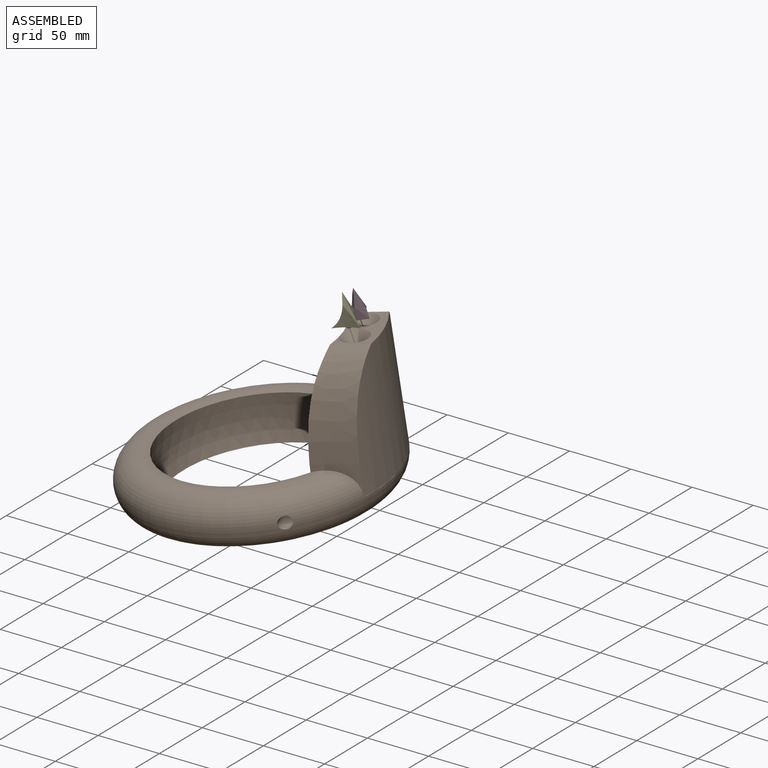
[diagram: assembled view]
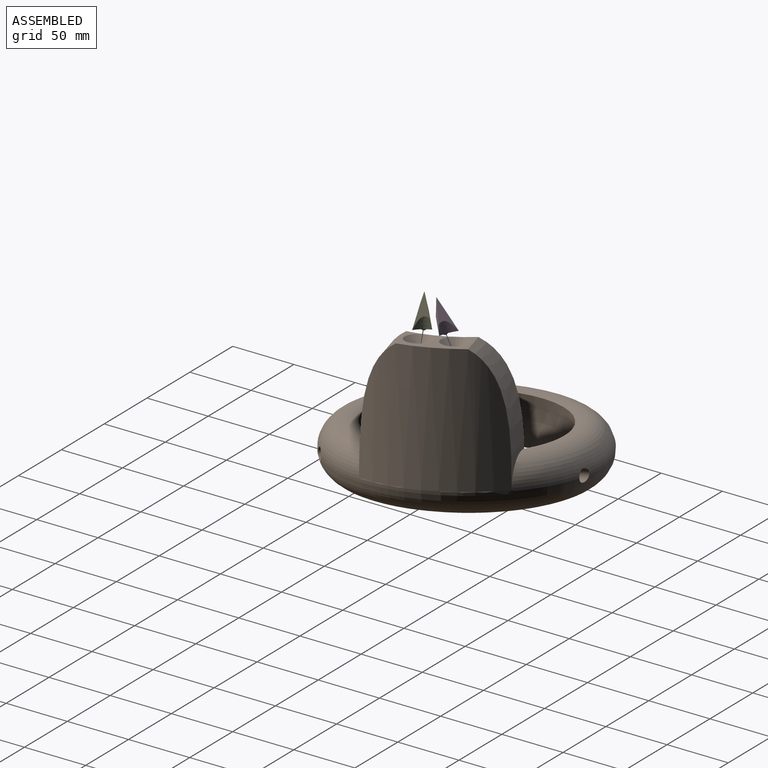
[diagram: assembled view, second angle]
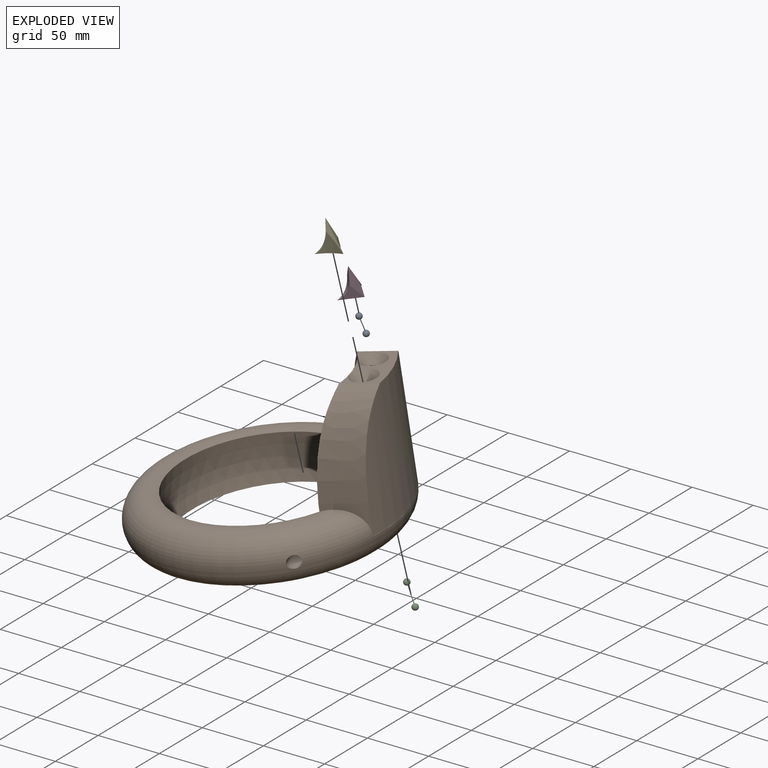
[diagram: exploded view]
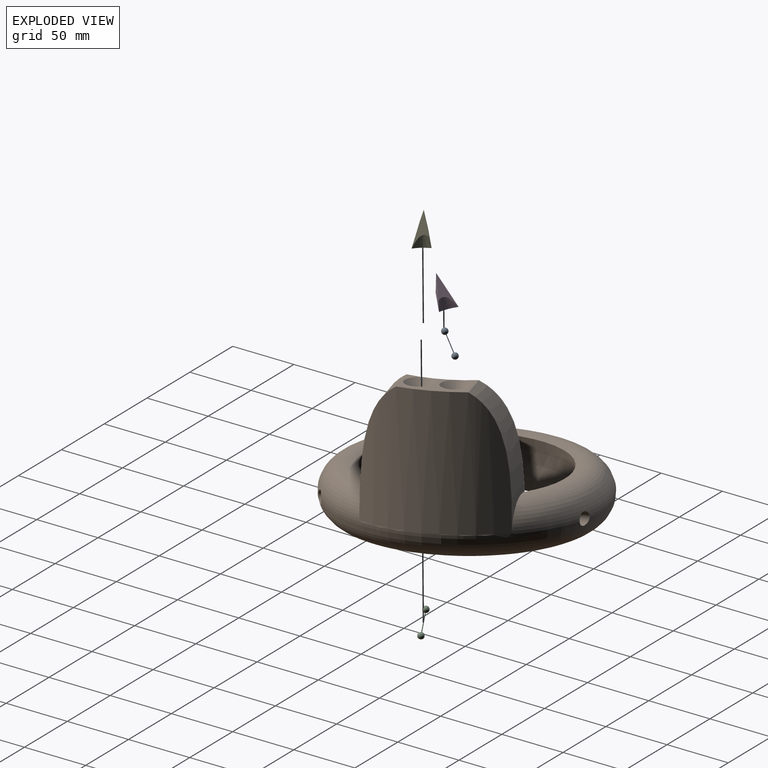
[diagram: exploded view, second angle]
ASSEMBLY  parts=5 mates=4
PART A: 3 faces, bbox 5x5x23.1 mm
  f0: sphere r=2.5mm, area 78.3mm2, adj f1
  f1: cylinder r=0.3mm len=13.14mm, axis (0,0,1), area 24.8mm2, adj f0,f2
  f2: sphere r=2.5mm, area 78.3mm2, adj f1
PART B: 16 faces, bbox 217.7x217.7x121.2 mm
  f0: torus R=80mm, axis (0,0,-1), area 39239.8mm2, adj f1,f3,f7,f9,f10,f11
  f1: sphere r=75mm, area 15126.7mm2, adj f0,f5,f7,f9,f10,f11
  f2: cylinder r=72.66mm len=105.43mm, axis (0,0,-1), area 10356.9mm2, adj f4,f5,f6,f8
  f3: cylinder r=100mm len=105.43mm, axis (0,0,-1), area 9860.6mm2, adj f0,f4,f6,f8
  f4: plane 50x31.78mm, normal (0,0,1), area 654.8mm2, adj f2,f3,f6,f8,f13,f15
  f5: plane 105.43x25mm, normal (0,0,-1), area 275.2mm2, adj f1,f2,f6,f8
  f6: extruded ~100x46.82mm, area 3568mm2, adj f2,f3,f4,f5,f7
  f7: plane 36.21x21.38mm, normal (1,0,0), area 549.5mm2, adj f0,f1,f6
  f8: extruded ~100x46.82mm, area 3568mm2, adj f2,f3,f4,f5,f9
  f9: plane 36.21x21.38mm, normal (-1,0,0), area 549.8mm2, adj f0,f1,f8
  f10: cylinder r=5mm len=33.68mm, axis (-1,0,0), area 880.2mm2, adj f0,f1
  f11: cylinder r=5mm len=33.68mm, axis (-1,0,0), area 880.3mm2, adj f0,f1
  f12: sphere r=2.5mm, area 56.4mm2, adj f13
  f13: cone r=2.25mm half-angle=43.8deg, axis (0,0,1), area 506.2mm2, adj f4,f12
  f14: sphere r=2.5mm, area 56.4mm2, adj f15
  f15: cone r=2.25mm half-angle=43.8deg, axis (0,0,1), area 506.2mm2, adj f4,f14
PART C: same geometry as A
PART D: 14 faces, bbox 13.5x19.9x25.1 mm
  f0: plane 17.66x11.4mm, normal (0.95,-0.31,0), area 86.5mm2, adj f8,f10,f11
  f1: extruded ~7.89x2.05mm, area 9.1mm2, adj f2,f8,f9,f11
  f2: extruded ~11.39x8.88mm, area 76.3mm2, adj f1,f8,f9
  f3: extruded ~16.29x10.23mm, area 106.7mm2, adj f4,f8,f9,f10,f12
  f4: extruded ~11.18x9.55mm, area 37.4mm2, adj f3,f8,f10
  f5: cylinder r=2.45mm len=13.4mm, axis (0,0,-1), area 6.7mm2, adj f6,f7,f11,f13
  f6: plane 14.17x0.05mm, normal (0,-1,0), area 0.7mm2, adj f5,f7,f8,f11,f13
  f7: plane 14.4x0.5mm, normal (-0.98,0.2,0), area 6.8mm2, adj f5,f6,f8,f11,f13
  f8: plane 19.78x13.44mm, normal (0,0,-1), area 73.3mm2, adj f0,f1,f2,f3,f4,f6,f7,f13
  f9: plane 25x11.69mm, normal (0,0.95,0.3), area 88.8mm2, adj f1,f2,f3,f11,f12
  f10: extruded ~25x12mm, area 92.9mm2, adj f0,f3,f4,f11,f12
  f11: plane 25.11x8.16mm, normal (0.98,0,0.22), area 87.5mm2, adj f0,f1,f5,f6,f7,f9,f10
  f12: plane 25.09x9.22mm, normal (-0.95,0,0.3), area 46.6mm2, adj f3,f9,f10
  f13: sphere r=2.5mm, area 47mm2, adj f5,f6,f7,f8
PART E: 9 faces, bbox 13.8x20.1x25.3 mm
  f0: extruded ~19.78x16.29mm, area 144.1mm2, adj f1,f4,f6
  f1: plane 19.78x13.44mm, normal (0,0,-1), area 73.3mm2, adj f0,f2,f3,f8
  f2: plane 17.66x11.4mm, normal (-0.95,-0.31,0), area 86.6mm2, adj f1,f3,f4,f7
  f3: extruded ~13.43x8.89mm, area 85.5mm2, adj f1,f2,f5,f7
  f4: extruded ~25x12mm, area 88.4mm2, adj f0,f2,f6,f7
  f5: plane 25x11.69mm, normal (0,0.95,0.3), area 88.8mm2, adj f3,f6,f7
  f6: plane 25.09x9.22mm, normal (0.95,0,0.3), area 46.6mm2, adj f0,f4,f5
  f7: plane 25.32x8.37mm, normal (-0.98,0,0.22), area 87.5mm2, adj f2,f3,f4,f5
  f8: sphere r=2.5mm, area 47.1mm2, adj f1
PLACE A rot(axis=(1,0,0),27.6deg) t=(38.82,93.84,-23.13)mm
PLACE B rot(axis=(0.11,-0.05,-0.99),69.7deg) t=(-35.59,91.26,-5.52)mm
PLACE C rot(axis=(0.19,-0.27,-0.94),66.1deg) t=(4.12,55.92,-15.31)mm
PLACE D rot(axis=(0.38,0.13,-0.92),42.1deg) t=(-15.72,78.48,-13.24)mm
PLACE E rot(axis=(0.17,-0.1,-0.98),56.4deg) t=(-27.93,75.76,-10.49)mm
MATE ball D.f5 <-> A.f1  axis (0,-0.28,0.96) through (26.32,116.82,110.92)mm
MATE ball C.f1 <-> B.f13  axis (-0.36,-0.02,0.93) through (35.2,101.86,94.19)mm
MATE ball B.f15 <-> A.f1  axis (-0.11,-0.07,0.99) through (26.32,125.22,94.88)mm
MATE ball E.f8 <-> C.f1  axis (-0.16,-0.09,0.98) through (28.73,101.4,111.09)mm
